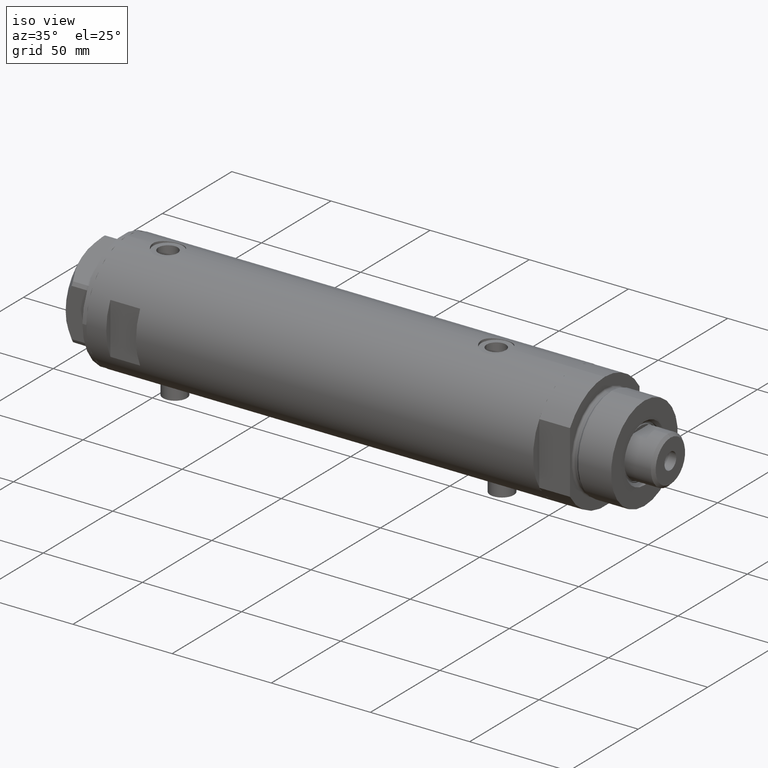
[diagram: clean part render]
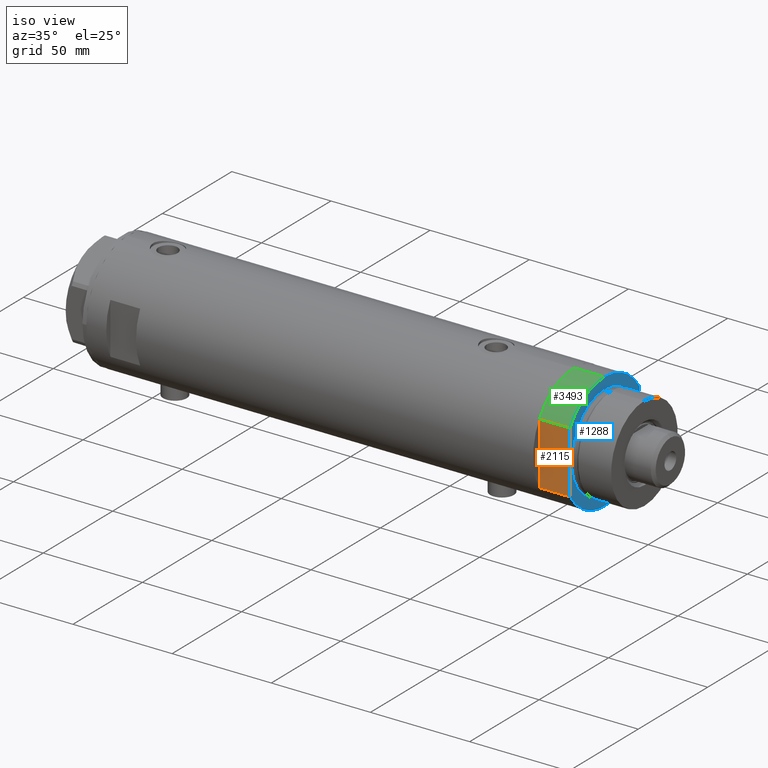
[diagram: same view with three faces highlighted in distinct colors, each labeled with its STEP entity id]
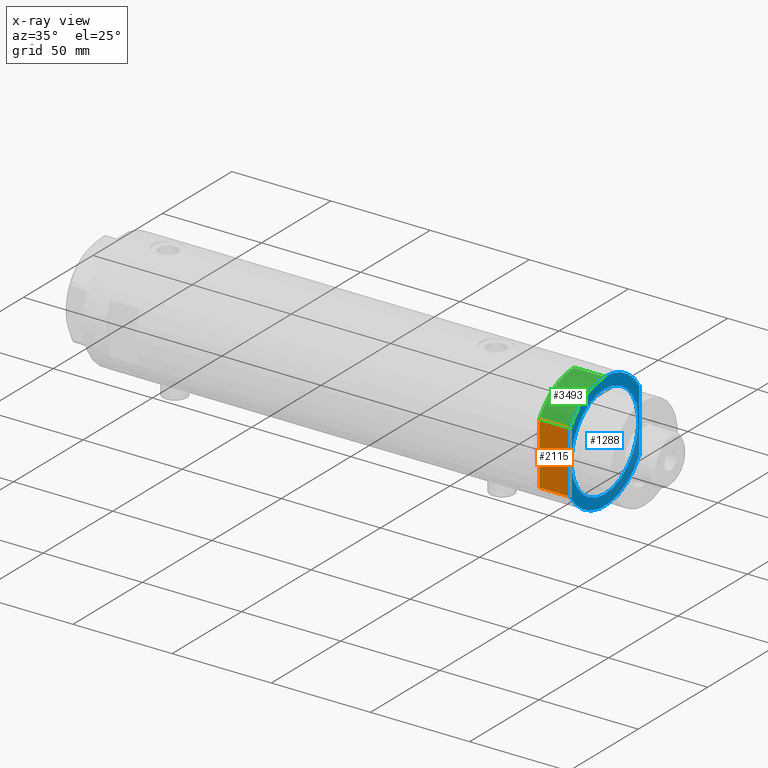
[diagram: x-ray of the same camera — body ghosted, the three highlighted faces saturated]
A machine part, iso view with three faces highlighted in distinct colors.
The next image is the same camera in x-ray (body ghosted, the three faces saturated) — at least one of them is partly hidden behind the body in this view.
Their STEP definitions:

[orange] entity #2115 — the highlighted planar face has unit normal (-0, 1, 0).
#51 = CARTESIAN_POINT ( 'NONE',  ( -15.66045976336583401, -25.00000000000000000, 0.000000000000000000 ) ) ;
#69 = ORIENTED_EDGE ( 'NONE', *, *, #2000, .F. ) ;
#71 = VERTEX_POINT ( 'NONE', #1073 ) ;
#156 = ORIENTED_EDGE ( 'NONE', *, *, #842, .F. ) ;
#197 = VECTOR ( 'NONE', #696, 1000.000000000000000 ) ;
#326 = DIRECTION ( 'NONE',  ( -1.000000000000000000, -0.000000000000000000, -0.000000000000000000 ) ) ;
#334 = LINE ( 'NONE', #2096, #3589 ) ;
#366 = DIRECTION ( 'NONE',  ( -1.000000000000000000, -0.000000000000000000, -0.000000000000000000 ) ) ;
#476 = LINE ( 'NONE', #4106, #1126 ) ;
#487 = ORIENTED_EDGE ( 'NONE', *, *, #1336, .T. ) ;
#488 = DIRECTION ( 'NONE',  ( 0.000000000000000000, -0.000000000000000000, 1.000000000000000000 ) ) ;
#556 = VERTEX_POINT ( 'NONE', #2299 ) ;
#696 = DIRECTION ( 'NONE',  ( -1.000000000000000000, -0.000000000000000000, -0.000000000000000000 ) ) ;
#711 = CARTESIAN_POINT ( 'NONE',  ( -15.66045976336583401, -25.00000000000000000, 0.000000000000000000 ) ) ;
#742 = AXIS2_PLACEMENT_3D ( 'NONE', #4142, #1997, #488 ) ;
#774 = CARTESIAN_POINT ( 'NONE',  ( -15.66045976336583401, -25.00000000000000000, 15.50000000000000000 ) ) ;
#842 = EDGE_CURVE ( 'NONE', #71, #3195, #3734, .T. ) ;
#1073 = CARTESIAN_POINT ( 'NONE',  ( -15.66045976336582690, -25.00000000000000000, 0.000000000000000000 ) ) ;
#1126 = VECTOR ( 'NONE', #3792, 1000.000000000000000 ) ;
#1190 = PLANE ( 'NONE',  #742 ) ;
#1196 = VECTOR ( 'NONE', #1566, 1000.000000000000000 ) ;
#1245 = FACE_OUTER_BOUND ( 'NONE', #4024, .T. ) ;
#1336 = EDGE_CURVE ( 'NONE', #4551, #2863, #334, .T. ) ;
#1566 = DIRECTION ( 'NONE',  ( -0.000000000000000000, -0.000000000000000000, 1.000000000000000000 ) ) ;
#1690 = CARTESIAN_POINT ( 'NONE',  ( 15.66045976336583045, -25.00000000000000000, 15.50000000000000000 ) ) ;
#1770 = VECTOR ( 'NONE', #366, 1000.000000000000000 ) ;
#1997 = DIRECTION ( 'NONE',  ( -0.000000000000000000, 1.000000000000000000, 0.000000000000000000 ) ) ;
#2000 = EDGE_CURVE ( 'NONE', #556, #71, #3362, .T. ) ;
#2036 = ORIENTED_EDGE ( 'NONE', *, *, #3723, .F. ) ;
#2096 = CARTESIAN_POINT ( 'NONE',  ( 15.66045976336583401, -25.00000000000000000, 0.000000000000000000 ) ) ;
#2115 = ADVANCED_FACE ( 'NONE', ( #1245 ), #1190, .F. ) ;
#2293 = VECTOR ( 'NONE', #326, 1000.000000000000000 ) ;
#2299 = CARTESIAN_POINT ( 'NONE',  ( -7.141428428542853091, -25.00000000000000000, 0.000000000000000000 ) ) ;
#2307 = EDGE_CURVE ( 'NONE', #4645, #556, #476, .T. ) ;
#2386 = CARTESIAN_POINT ( 'NONE',  ( 15.66045976336583401, -25.00000000000000000, 0.000000000000000000 ) ) ;
#2863 = VERTEX_POINT ( 'NONE', #1690 ) ;
#2870 = DIRECTION ( 'NONE',  ( -0.000000000000000000, -0.000000000000000000, 1.000000000000000000 ) ) ;
#3015 = LINE ( 'NONE', #774, #1770 ) ;
#3030 = CARTESIAN_POINT ( 'NONE',  ( 7.141428428542853091, -25.00000000000000000, 0.000000000000000000 ) ) ;
#3195 = VERTEX_POINT ( 'NONE', #4181 ) ;
#3362 = LINE ( 'NONE', #51, #197 ) ;
#3589 = VECTOR ( 'NONE', #2870, 1000.000000000000000 ) ;
#3723 = EDGE_CURVE ( 'NONE', #4551, #4645, #4778, .T. ) ;
#3734 = LINE ( 'NONE', #4505, #1196 ) ;
#3792 = DIRECTION ( 'NONE',  ( -1.000000000000000000, -0.000000000000000000, -0.000000000000000000 ) ) ;
#3923 = ORIENTED_EDGE ( 'NONE', *, *, #2307, .F. ) ;
#4024 = EDGE_LOOP ( 'NONE', ( #4311, #156, #69, #3923, #2036, #487 ) ) ;
#4106 = CARTESIAN_POINT ( 'NONE',  ( -15.66045976336583401, -25.00000000000000000, 0.000000000000000000 ) ) ;
#4142 = CARTESIAN_POINT ( 'NONE',  ( -15.66045976336583401, -25.00000000000000000, 0.000000000000000000 ) ) ;
#4181 = CARTESIAN_POINT ( 'NONE',  ( -15.66045976336583045, -25.00000000000000000, 15.50000000000000000 ) ) ;
#4256 = EDGE_CURVE ( 'NONE', #2863, #3195, #3015, .T. ) ;
#4311 = ORIENTED_EDGE ( 'NONE', *, *, #4256, .T. ) ;
#4505 = CARTESIAN_POINT ( 'NONE',  ( -15.66045976336583401, -25.00000000000000000, 0.000000000000000000 ) ) ;
#4551 = VERTEX_POINT ( 'NONE', #2386 ) ;
#4645 = VERTEX_POINT ( 'NONE', #3030 ) ;
#4778 = LINE ( 'NONE', #711, #2293 ) ;

[blue] entity #1288 — the highlighted planar face has unit normal (1, 0, -0).
#28 = DIRECTION ( 'NONE',  ( 1.000000000000000000, 0.000000000000000000, -0.000000000000000000 ) ) ;
#44 = AXIS2_PLACEMENT_3D ( 'NONE', #4421, #342, #1756 ) ;
#83 = EDGE_CURVE ( 'NONE', #167, #1797, #259, .T. ) ;
#167 = VERTEX_POINT ( 'NONE', #2180 ) ;
#221 = CARTESIAN_POINT ( 'NONE',  ( -15.66045976336583045, 25.00000000000000000, 15.50000000000000000 ) ) ;
#259 = CIRCLE ( 'NONE', #570, 24.00000000000000000 ) ;
#342 = DIRECTION ( 'NONE',  ( 0.000000000000000000, 0.000000000000000000, 1.000000000000000000 ) ) ;
#366 = DIRECTION ( 'NONE',  ( -1.000000000000000000, -0.000000000000000000, -0.000000000000000000 ) ) ;
#558 = DIRECTION ( 'NONE',  ( 1.000000000000000000, 0.000000000000000000, 0.000000000000000000 ) ) ;
#570 = AXIS2_PLACEMENT_3D ( 'NONE', #2902, #2798, #1416 ) ;
#617 = ORIENTED_EDGE ( 'NONE', *, *, #83, .T. ) ;
#767 = CARTESIAN_POINT ( 'NONE',  ( 0.000000000000000000, 0.000000000000000000, 15.50000000000000000 ) ) ;
#774 = CARTESIAN_POINT ( 'NONE',  ( -15.66045976336583401, -25.00000000000000000, 15.50000000000000000 ) ) ;
#796 = EDGE_CURVE ( 'NONE', #3928, #3195, #2729, .T. ) ;
#874 = CARTESIAN_POINT ( 'NONE',  ( 0.000000000000000000, 0.000000000000000000, 15.50000000000000000 ) ) ;
#905 = AXIS2_PLACEMENT_3D ( 'NONE', #874, #3459, #558 ) ;
#929 = EDGE_CURVE ( 'NONE', #1797, #167, #1355, .T. ) ;
#1057 = CARTESIAN_POINT ( 'NONE',  ( 24.00000000000000000, 0.000000000000000000, 15.50000000000000000 ) ) ;
#1082 = ORIENTED_EDGE ( 'NONE', *, *, #929, .T. ) ;
#1084 = ORIENTED_EDGE ( 'NONE', *, *, #796, .T. ) ;
#1149 = FACE_OUTER_BOUND ( 'NONE', #3751, .T. ) ;
#1288 = ADVANCED_FACE ( 'NONE', ( #4459, #1149 ), #3339, .T. ) ;
#1292 = CARTESIAN_POINT ( 'NONE',  ( -29.50000000000000355, 0.000000000000000000, 15.50000000000000000 ) ) ;
#1355 = CIRCLE ( 'NONE', #4127, 24.00000000000000000 ) ;
#1416 = DIRECTION ( 'NONE',  ( 1.000000000000000000, 0.000000000000000000, 0.000000000000000000 ) ) ;
#1518 = CARTESIAN_POINT ( 'NONE',  ( 0.000000000000000000, 0.000000000000000000, 15.50000000000000000 ) ) ;
#1588 = AXIS2_PLACEMENT_3D ( 'NONE', #1518, #2979, #28 ) ;
#1690 = CARTESIAN_POINT ( 'NONE',  ( 15.66045976336583045, -25.00000000000000000, 15.50000000000000000 ) ) ;
#1702 = LINE ( 'NONE', #2038, #3609 ) ;
#1756 = DIRECTION ( 'NONE',  ( 1.000000000000000000, 0.000000000000000000, 0.000000000000000000 ) ) ;
#1770 = VECTOR ( 'NONE', #366, 1000.000000000000000 ) ;
#1797 = VERTEX_POINT ( 'NONE', #1057 ) ;
#1821 = EDGE_LOOP ( 'NONE', ( #1082, #617 ) ) ;
#1890 = DIRECTION ( 'NONE',  ( 1.000000000000000000, 0.000000000000000000, 0.000000000000000000 ) ) ;
#2038 = CARTESIAN_POINT ( 'NONE',  ( -15.66045976336583401, 25.00000000000000000, 15.50000000000000000 ) ) ;
#2062 = CIRCLE ( 'NONE', #44, 29.50000000000000355 ) ;
#2180 = CARTESIAN_POINT ( 'NONE',  ( -24.00000000000000000, 2.939152317953647894E-15, 15.50000000000000000 ) ) ;
#2241 = DIRECTION ( 'NONE',  ( 0.000000000000000000, 0.000000000000000000, 1.000000000000000000 ) ) ;
#2302 = ORIENTED_EDGE ( 'NONE', *, *, #3037, .T. ) ;
#2535 = ORIENTED_EDGE ( 'NONE', *, *, #3872, .T. ) ;
#2620 = DIRECTION ( 'NONE',  ( 1.000000000000000000, 0.000000000000000000, 0.000000000000000000 ) ) ;
#2647 = CARTESIAN_POINT ( 'NONE',  ( 15.66045976336583045, 25.00000000000000000, 15.50000000000000000 ) ) ;
#2729 = CIRCLE ( 'NONE', #3347, 29.50000000000000355 ) ;
#2798 = DIRECTION ( 'NONE',  ( -0.000000000000000000, -0.000000000000000000, -1.000000000000000000 ) ) ;
#2863 = VERTEX_POINT ( 'NONE', #1690 ) ;
#2902 = CARTESIAN_POINT ( 'NONE',  ( 0.000000000000000000, 0.000000000000000000, 15.50000000000000000 ) ) ;
#2979 = DIRECTION ( 'NONE',  ( 0.000000000000000000, 0.000000000000000000, 1.000000000000000000 ) ) ;
#3015 = LINE ( 'NONE', #774, #1770 ) ;
#3037 = EDGE_CURVE ( 'NONE', #2863, #4291, #2062, .T. ) ;
#3055 = DIRECTION ( 'NONE',  ( -0.000000000000000000, -0.000000000000000000, -1.000000000000000000 ) ) ;
#3118 = DIRECTION ( 'NONE',  ( 1.000000000000000000, 0.000000000000000000, 0.000000000000000000 ) ) ;
#3195 = VERTEX_POINT ( 'NONE', #4181 ) ;
#3339 = PLANE ( 'NONE',  #1588 ) ;
#3347 = AXIS2_PLACEMENT_3D ( 'NONE', #767, #2241, #1890 ) ;
#3367 = CIRCLE ( 'NONE', #905, 29.50000000000000355 ) ;
#3459 = DIRECTION ( 'NONE',  ( 0.000000000000000000, 0.000000000000000000, 1.000000000000000000 ) ) ;
#3467 = ORIENTED_EDGE ( 'NONE', *, *, #4256, .F. ) ;
#3609 = VECTOR ( 'NONE', #3118, 1000.000000000000000 ) ;
#3751 = EDGE_LOOP ( 'NONE', ( #3467, #2302, #4389, #2535, #1084 ) ) ;
#3833 = CARTESIAN_POINT ( 'NONE',  ( 0.000000000000000000, 0.000000000000000000, 15.50000000000000000 ) ) ;
#3872 = EDGE_CURVE ( 'NONE', #3893, #3928, #3367, .T. ) ;
#3893 = VERTEX_POINT ( 'NONE', #221 ) ;
#3908 = EDGE_CURVE ( 'NONE', #3893, #4291, #1702, .T. ) ;
#3928 = VERTEX_POINT ( 'NONE', #1292 ) ;
#4127 = AXIS2_PLACEMENT_3D ( 'NONE', #3833, #3055, #2620 ) ;
#4181 = CARTESIAN_POINT ( 'NONE',  ( -15.66045976336583045, -25.00000000000000000, 15.50000000000000000 ) ) ;
#4256 = EDGE_CURVE ( 'NONE', #2863, #3195, #3015, .T. ) ;
#4291 = VERTEX_POINT ( 'NONE', #2647 ) ;
#4389 = ORIENTED_EDGE ( 'NONE', *, *, #3908, .F. ) ;
#4421 = CARTESIAN_POINT ( 'NONE',  ( 0.000000000000000000, 0.000000000000000000, 15.50000000000000000 ) ) ;
#4459 = FACE_BOUND ( 'NONE', #1821, .T. ) ;

[green] entity #3493 — the highlighted cylindrical surface (partial cylindrical patch) has radius 29.5 mm, axis along (-1, -0, 0).
#71 = VERTEX_POINT ( 'NONE', #1073 ) ;
#211 = CARTESIAN_POINT ( 'NONE',  ( 0.000000000000000000, 0.000000000000000000, 0.000000000000000000 ) ) ;
#466 = CARTESIAN_POINT ( 'NONE',  ( 0.000000000000000000, 0.000000000000000000, 15.50000000000000000 ) ) ;
#767 = CARTESIAN_POINT ( 'NONE',  ( 0.000000000000000000, 0.000000000000000000, 15.50000000000000000 ) ) ;
#796 = EDGE_CURVE ( 'NONE', #3928, #3195, #2729, .T. ) ;
#842 = EDGE_CURVE ( 'NONE', #71, #3195, #3734, .T. ) ;
#1073 = CARTESIAN_POINT ( 'NONE',  ( -15.66045976336582690, -25.00000000000000000, 0.000000000000000000 ) ) ;
#1140 = VECTOR ( 'NONE', #3353, 1000.000000000000000 ) ;
#1196 = VECTOR ( 'NONE', #1566, 1000.000000000000000 ) ;
#1263 = ORIENTED_EDGE ( 'NONE', *, *, #796, .F. ) ;
#1292 = CARTESIAN_POINT ( 'NONE',  ( -29.50000000000000355, 0.000000000000000000, 15.50000000000000000 ) ) ;
#1566 = DIRECTION ( 'NONE',  ( -0.000000000000000000, -0.000000000000000000, 1.000000000000000000 ) ) ;
#1596 = DIRECTION ( 'NONE',  ( 1.000000000000000000, 0.000000000000000000, 0.000000000000000000 ) ) ;
#1693 = DIRECTION ( 'NONE',  ( 0.000000000000000000, 0.000000000000000000, 1.000000000000000000 ) ) ;
#1839 = AXIS2_PLACEMENT_3D ( 'NONE', #211, #1693, #1596 ) ;
#1876 = LINE ( 'NONE', #2948, #1140 ) ;
#1880 = EDGE_LOOP ( 'NONE', ( #1263, #3045, #4495, #2240 ) ) ;
#1890 = DIRECTION ( 'NONE',  ( 1.000000000000000000, 0.000000000000000000, 0.000000000000000000 ) ) ;
#1951 = DIRECTION ( 'NONE',  ( -0.000000000000000000, -0.000000000000000000, -1.000000000000000000 ) ) ;
#2238 = EDGE_CURVE ( 'NONE', #3597, #71, #3902, .T. ) ;
#2240 = ORIENTED_EDGE ( 'NONE', *, *, #842, .T. ) ;
#2241 = DIRECTION ( 'NONE',  ( 0.000000000000000000, 0.000000000000000000, 1.000000000000000000 ) ) ;
#2729 = CIRCLE ( 'NONE', #3347, 29.50000000000000355 ) ;
#2948 = CARTESIAN_POINT ( 'NONE',  ( -29.50000000000000355, 0.000000000000000000, 15.50000000000000000 ) ) ;
#3045 = ORIENTED_EDGE ( 'NONE', *, *, #4169, .T. ) ;
#3050 = DIRECTION ( 'NONE',  ( -1.000000000000000000, 0.000000000000000000, 0.000000000000000000 ) ) ;
#3195 = VERTEX_POINT ( 'NONE', #4181 ) ;
#3347 = AXIS2_PLACEMENT_3D ( 'NONE', #767, #2241, #1890 ) ;
#3353 = DIRECTION ( 'NONE',  ( -0.000000000000000000, -0.000000000000000000, -1.000000000000000000 ) ) ;
#3493 = ADVANCED_FACE ( 'NONE', ( #3753 ), #3780, .T. ) ;
#3597 = VERTEX_POINT ( 'NONE', #4191 ) ;
#3734 = LINE ( 'NONE', #4505, #1196 ) ;
#3753 = FACE_OUTER_BOUND ( 'NONE', #1880, .T. ) ;
#3780 = CYLINDRICAL_SURFACE ( 'NONE', #4304, 29.50000000000000355 ) ;
#3902 = CIRCLE ( 'NONE', #1839, 29.50000000000000355 ) ;
#3928 = VERTEX_POINT ( 'NONE', #1292 ) ;
#4169 = EDGE_CURVE ( 'NONE', #3928, #3597, #1876, .T. ) ;
#4181 = CARTESIAN_POINT ( 'NONE',  ( -15.66045976336583045, -25.00000000000000000, 15.50000000000000000 ) ) ;
#4191 = CARTESIAN_POINT ( 'NONE',  ( -29.50000000000000355, 0.000000000000000000, 0.000000000000000000 ) ) ;
#4304 = AXIS2_PLACEMENT_3D ( 'NONE', #466, #1951, #3050 ) ;
#4495 = ORIENTED_EDGE ( 'NONE', *, *, #2238, .T. ) ;
#4505 = CARTESIAN_POINT ( 'NONE',  ( -15.66045976336583401, -25.00000000000000000, 0.000000000000000000 ) ) ;